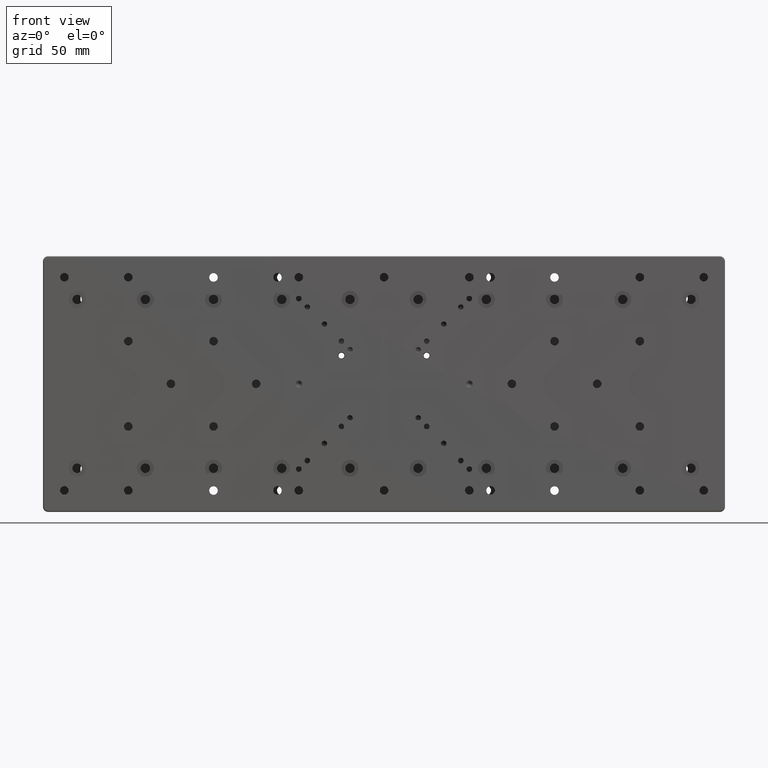
[diagram: clean part render]
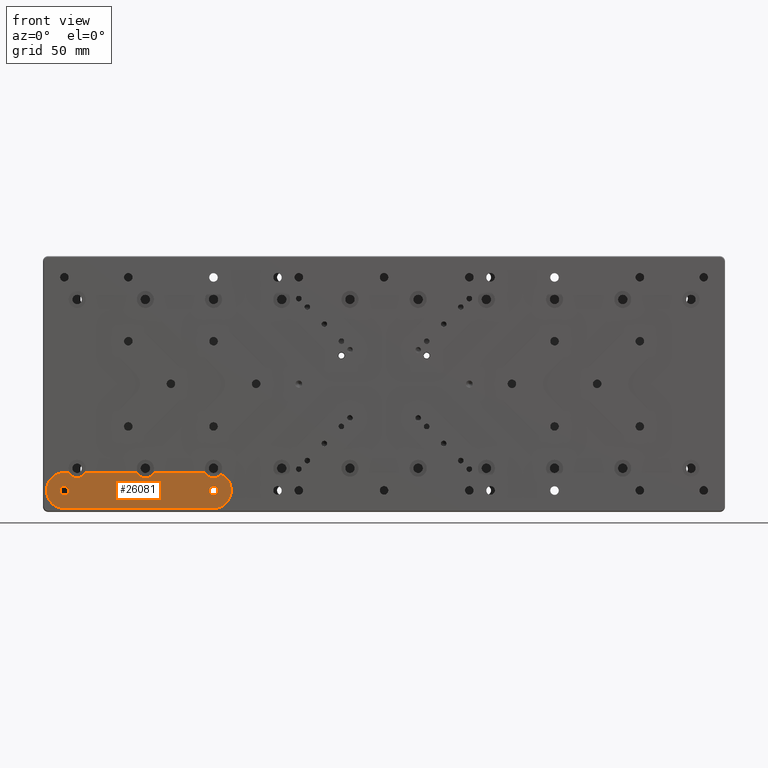
[diagram: same view with one face highlighted and labeled with its STEP entity id]
A machine part, front view. The second image highlights one B-rep face of the part: STEP entity #26081.
In plain terms, the highlighted planar face has unit normal (0, -1, 0).
Its self-contained STEP definition (entity closure, byte-faithful):
#236 = FACE_BOUND ( 'NONE', #25785, .T. ) ;
#312 = CARTESIAN_POINT ( 'NONE',  ( -187.5000000000000000, -24.00000000000000000, -52.00000000000000711 ) ) ;
#535 = EDGE_LOOP ( 'NONE', ( #8574 ) ) ;
#555 = CARTESIAN_POINT ( 'NONE',  ( -185.4772255750999932, -24.00000000000000000, -53.00000000000000000 ) ) ;
#630 = DIRECTION ( 'NONE',  ( 0.000000000000000000, 1.000000000000000000, 0.000000000000000000 ) ) ;
#766 = DIRECTION ( 'NONE',  ( 0.000000000000000000, 0.000000000000000000, 1.000000000000000000 ) ) ;
#1139 = DIRECTION ( 'NONE',  ( 0.000000000000000000, 0.000000000000000000, 1.000000000000000000 ) ) ;
#1380 = DIRECTION ( 'NONE',  ( -0.000000000000000000, 1.000000000000000000, -0.000000000000000000 ) ) ;
#1472 = AXIS2_PLACEMENT_3D ( 'NONE', #10690, #1380, #1588 ) ;
#1588 = DIRECTION ( 'NONE',  ( 0.000000000000000000, 0.000000000000000000, -1.000000000000000000 ) ) ;
#1903 = CARTESIAN_POINT ( 'NONE',  ( -140.0000000000000000, -24.00000000000000000, -49.50000000000000000 ) ) ;
#2123 = CIRCLE ( 'NONE', #1472, 10.49999999999999467 ) ;
#2188 = DIRECTION ( 'NONE',  ( -0.000000000000000000, 1.000000000000000000, -0.000000000000000000 ) ) ;
#2305 = VERTEX_POINT ( 'NONE', #7729 ) ;
#2790 = CARTESIAN_POINT ( 'NONE',  ( -95.46219039884999802, -24.00000000000000355, -54.15384615384999734 ) ) ;
#3070 = EDGE_CURVE ( 'NONE', #39783, #29793, #16046, .T. ) ;
#3200 = DIRECTION ( 'NONE',  ( 0.000000000000000000, 1.000000000000000000, 0.000000000000000000 ) ) ;
#3202 = CIRCLE ( 'NONE', #9015, 1.000000000000000888 ) ;
#3675 = CARTESIAN_POINT ( 'NONE',  ( -144.6345754866048594, -24.00000000000000000, -52.46153846153496403 ) ) ;
#3904 = EDGE_CURVE ( 'NONE', #38924, #10368, #35996, .T. ) ;
#3928 = CIRCLE ( 'NONE', #28446, 1.000000000000000888 ) ;
#4079 = FACE_BOUND ( 'NONE', #39364, .T. ) ;
#4665 = ORIENTED_EDGE ( 'NONE', *, *, #15317, .T. ) ;
#5141 = DIRECTION ( 'NONE',  ( 0.000000000000000000, 1.000000000000000000, 0.000000000000000000 ) ) ;
#5342 = EDGE_CURVE ( 'NONE', #24767, #39783, #3202, .T. ) ;
#6306 = FACE_BOUND ( 'NONE', #535, .T. ) ;
#6507 = DIRECTION ( 'NONE',  ( 0.000000000000000000, -1.000000000000000000, 0.000000000000000000 ) ) ;
#6849 = CARTESIAN_POINT ( 'NONE',  ( -100.0000000000000000, -24.00000000000000000, -65.00000000000000000 ) ) ;
#6897 = EDGE_CURVE ( 'NONE', #22754, #36073, #26516, .T. ) ;
#6978 = DIRECTION ( 'NONE',  ( -1.000000000000000000, 0.000000000000000000, -0.000000000000000000 ) ) ;
#7049 = DIRECTION ( 'NONE',  ( -0.000000000000000000, 1.000000000000000000, -0.000000000000000000 ) ) ;
#7090 = CARTESIAN_POINT ( 'NONE',  ( -185.4772255750999932, -24.00000000000000000, -52.00000000000000711 ) ) ;
#7275 = CARTESIAN_POINT ( 'NONE',  ( -134.5227744249000068, -24.00000000000000000, -52.00000000000000711 ) ) ;
#7323 = ORIENTED_EDGE ( 'NONE', *, *, #25164, .F. ) ;
#7729 = CARTESIAN_POINT ( 'NONE',  ( -145.4772255750999932, -24.00000000000000000, -52.00000000000000711 ) ) ;
#7735 = VERTEX_POINT ( 'NONE', #29560 ) ;
#7847 = CIRCLE ( 'NONE', #27858, 1.000000000000000888 ) ;
#8036 = DIRECTION ( 'NONE',  ( 1.000000000000000000, 0.000000000000000000, -0.000000000000000000 ) ) ;
#8542 = CARTESIAN_POINT ( 'NONE',  ( -100.0000000000000000, -24.00000000000000000, -49.50000000000000000 ) ) ;
#8574 = ORIENTED_EDGE ( 'NONE', *, *, #20783, .T. ) ;
#9015 = AXIS2_PLACEMENT_3D ( 'NONE', #2790, #15125, #39732 ) ;
#9183 = VECTOR ( 'NONE', #16949, 1000.000000000000000 ) ;
#9239 = ORIENTED_EDGE ( 'NONE', *, *, #22980, .F. ) ;
#9280 = VECTOR ( 'NONE', #6978, 1000.000000000000000 ) ;
#9302 = VECTOR ( 'NONE', #8036, 1000.000000000000000 ) ;
#9485 = CARTESIAN_POINT ( 'NONE',  ( -187.5000000000000000, -24.00000000000000000, -52.00000000000000711 ) ) ;
#9633 = AXIS2_PLACEMENT_3D ( 'NONE', #20959, #2188, #35914 ) ;
#9662 = EDGE_CURVE ( 'NONE', #11790, #35545, #2123, .T. ) ;
#9675 = ORIENTED_EDGE ( 'NONE', *, *, #14891, .F. ) ;
#9893 = CARTESIAN_POINT ( 'NONE',  ( -105.4772255750999932, -24.00000000000000000, -52.00000000000000711 ) ) ;
#10053 = EDGE_LOOP ( 'NONE', ( #39008, #9675, #10590, #14131, #31719, #37846, #31317, #30609, #9239, #13562, #21461, #27390, #17865, #27754, #7323 ) ) ;
#10368 = VERTEX_POINT ( 'NONE', #3675 ) ;
#10447 = CARTESIAN_POINT ( 'NONE',  ( -100.0000000000000000, -24.00000000000000000, -73.00000000000000000 ) ) ;
#10466 = EDGE_CURVE ( 'NONE', #2305, #24495, #37616, .T. ) ;
#10590 = ORIENTED_EDGE ( 'NONE', *, *, #26603, .T. ) ;
#10690 = CARTESIAN_POINT ( 'NONE',  ( -187.5000000000000000, -24.00000000000000000, -62.50000000000000000 ) ) ;
#10750 = CARTESIAN_POINT ( 'NONE',  ( -100.0000000000000000, -24.00000000000000000, -62.50000000000000000 ) ) ;
#11222 = VECTOR ( 'NONE', #31359, 1000.000000000000000 ) ;
#11790 = VERTEX_POINT ( 'NONE', #36516 ) ;
#11948 = CARTESIAN_POINT ( 'NONE',  ( -187.5000000000000000, -24.00000000000000000, -65.00000000000000000 ) ) ;
#12111 = AXIS2_PLACEMENT_3D ( 'NONE', #1903, #5141, #24321 ) ;
#12247 = DIRECTION ( 'NONE',  ( 0.000000000000000000, 1.000000000000000000, 0.000000000000000000 ) ) ;
#12339 = CIRCLE ( 'NONE', #36887, 1.000000000000000888 ) ;
#12819 = AXIS2_PLACEMENT_3D ( 'NONE', #555, #3200, #766 ) ;
#13375 = DIRECTION ( 'NONE',  ( 0.000000000000000000, 0.000000000000000000, -1.000000000000000000 ) ) ;
#13562 = ORIENTED_EDGE ( 'NONE', *, *, #13692, .T. ) ;
#13571 = DIRECTION ( 'NONE',  ( -0.000000000000000000, 1.000000000000000000, -0.000000000000000000 ) ) ;
#13692 = EDGE_CURVE ( 'NONE', #17823, #27721, #36882, .T. ) ;
#14131 = ORIENTED_EDGE ( 'NONE', *, *, #9662, .F. ) ;
#14792 = DIRECTION ( 'NONE',  ( 0.000000000000000000, 1.000000000000000000, 0.000000000000000000 ) ) ;
#14891 = EDGE_CURVE ( 'NONE', #30562, #36073, #30904, .T. ) ;
#14987 = VERTEX_POINT ( 'NONE', #11948 ) ;
#15125 = DIRECTION ( 'NONE',  ( -0.000000000000000000, 1.000000000000000000, -0.000000000000000000 ) ) ;
#15317 = EDGE_CURVE ( 'NONE', #14987, #14987, #21142, .T. ) ;
#15359 = AXIS2_PLACEMENT_3D ( 'NONE', #33875, #30832, #27811 ) ;
#15563 = DIRECTION ( 'NONE',  ( 0.000000000000000000, 0.000000000000000000, -1.000000000000000000 ) ) ;
#16046 = CIRCLE ( 'NONE', #18595, 10.49999999999999467 ) ;
#16566 = CIRCLE ( 'NONE', #36005, 5.499999999999998224 ) ;
#16949 = DIRECTION ( 'NONE',  ( -1.000000000000000000, 0.000000000000000000, -0.000000000000000000 ) ) ;
#17522 = CARTESIAN_POINT ( 'NONE',  ( -180.0000000000000000, -24.00000000000000000, -49.50000000000000000 ) ) ;
#17823 = VERTEX_POINT ( 'NONE', #9893 ) ;
#17865 = ORIENTED_EDGE ( 'NONE', *, *, #36363, .F. ) ;
#18255 = EDGE_CURVE ( 'NONE', #24767, #7735, #16566, .T. ) ;
#18595 = AXIS2_PLACEMENT_3D ( 'NONE', #10750, #13571, #13375 ) ;
#18797 = AXIS2_PLACEMENT_3D ( 'NONE', #34164, #6507, #29713 ) ;
#19210 = DIRECTION ( 'NONE',  ( 0.000000000000000000, 0.000000000000000000, 1.000000000000000000 ) ) ;
#19541 = CARTESIAN_POINT ( 'NONE',  ( -105.4772255750999932, -24.00000000000000000, -53.00000000000000000 ) ) ;
#19774 = VERTEX_POINT ( 'NONE', #28419 ) ;
#20248 = DIRECTION ( 'NONE',  ( -0.000000000000000000, 1.000000000000000000, -0.000000000000000000 ) ) ;
#20783 = EDGE_CURVE ( 'NONE', #19774, #19774, #32850, .T. ) ;
#20959 = CARTESIAN_POINT ( 'NONE',  ( -150.0000000000000000, -24.00000000000000000, -62.50000000000000000 ) ) ;
#21142 = CIRCLE ( 'NONE', #15359, 2.500000000000002220 ) ;
#21461 = ORIENTED_EDGE ( 'NONE', *, *, #36816, .F. ) ;
#21838 = PLANE ( 'NONE',  #18797 ) ;
#22082 = AXIS2_PLACEMENT_3D ( 'NONE', #31121, #25250, #15563 ) ;
#22754 = VERTEX_POINT ( 'NONE', #35934 ) ;
#22980 = EDGE_CURVE ( 'NONE', #17823, #7735, #12339, .T. ) ;
#22989 = CARTESIAN_POINT ( 'NONE',  ( -187.5000000000000000, -24.00000000000000000, -52.00000000000000711 ) ) ;
#23874 = DIRECTION ( 'NONE',  ( 0.000000000000000000, 0.000000000000000000, -1.000000000000000000 ) ) ;
#23984 = DIRECTION ( 'NONE',  ( 0.000000000000000000, 0.000000000000000000, 1.000000000000000000 ) ) ;
#24275 = DIRECTION ( 'NONE',  ( 0.000000000000000000, 0.000000000000000000, 1.000000000000000000 ) ) ;
#24321 = DIRECTION ( 'NONE',  ( 0.000000000000000000, 0.000000000000000000, 1.000000000000000000 ) ) ;
#24368 = CARTESIAN_POINT ( 'NONE',  ( -174.5227744249000352, -24.00000000000000000, -52.00000000000000711 ) ) ;
#24495 = VERTEX_POINT ( 'NONE', #24368 ) ;
#24767 = VERTEX_POINT ( 'NONE', #32626 ) ;
#25164 = EDGE_CURVE ( 'NONE', #22754, #24495, #3928, .T. ) ;
#25250 = DIRECTION ( 'NONE',  ( -0.000000000000000000, 1.000000000000000000, -0.000000000000000000 ) ) ;
#25785 = EDGE_LOOP ( 'NONE', ( #33685 ) ) ;
#26081 = ADVANCED_FACE ( 'NONE', ( #4079, #6306, #236, #37194 ), #21838, .T. ) ;
#26516 = CIRCLE ( 'NONE', #32975, 5.499999999999998224 ) ;
#26603 = EDGE_CURVE ( 'NONE', #30562, #35545, #38150, .T. ) ;
#27390 = ORIENTED_EDGE ( 'NONE', *, *, #3904, .T. ) ;
#27721 = VERTEX_POINT ( 'NONE', #7275 ) ;
#27754 = ORIENTED_EDGE ( 'NONE', *, *, #10466, .T. ) ;
#27811 = DIRECTION ( 'NONE',  ( 0.000000000000000000, 0.000000000000000000, -1.000000000000000000 ) ) ;
#27858 = AXIS2_PLACEMENT_3D ( 'NONE', #37400, #630, #19210 ) ;
#27939 = CARTESIAN_POINT ( 'NONE',  ( -187.5000000000000000, -24.00000000000000000, -52.00000000000000711 ) ) ;
#28024 = EDGE_CURVE ( 'NONE', #11790, #29793, #28642, .T. ) ;
#28419 = CARTESIAN_POINT ( 'NONE',  ( -150.0000000000000000, -24.00000000000000000, -65.00000000000000000 ) ) ;
#28446 = AXIS2_PLACEMENT_3D ( 'NONE', #32379, #20248, #23874 ) ;
#28642 = LINE ( 'NONE', #10447, #9302 ) ;
#28840 = DIRECTION ( 'NONE',  ( 0.000000000000000000, 1.000000000000000000, 0.000000000000000000 ) ) ;
#29382 = CARTESIAN_POINT ( 'NONE',  ( -184.6345754866048310, -24.00000000000000000, -52.46153846153496403 ) ) ;
#29460 = CARTESIAN_POINT ( 'NONE',  ( -100.0000000000000000, -24.00000000000000000, -62.50000000000000000 ) ) ;
#29560 = CARTESIAN_POINT ( 'NONE',  ( -104.6345754866048594, -24.00000000000000000, -52.46153846153496403 ) ) ;
#29713 = DIRECTION ( 'NONE',  ( 0.000000000000000000, -0.000000000000000000, -1.000000000000000000 ) ) ;
#29793 = VERTEX_POINT ( 'NONE', #33511 ) ;
#30562 = VERTEX_POINT ( 'NONE', #7090 ) ;
#30609 = ORIENTED_EDGE ( 'NONE', *, *, #18255, .T. ) ;
#30832 = DIRECTION ( 'NONE',  ( -0.000000000000000000, 1.000000000000000000, -0.000000000000000000 ) ) ;
#30904 = CIRCLE ( 'NONE', #12819, 1.000000000000000888 ) ;
#31090 = VERTEX_POINT ( 'NONE', #6849 ) ;
#31121 = CARTESIAN_POINT ( 'NONE',  ( -134.5227744249000068, -24.00000000000000355, -53.00000000000000000 ) ) ;
#31317 = ORIENTED_EDGE ( 'NONE', *, *, #5342, .F. ) ;
#31359 = DIRECTION ( 'NONE',  ( -1.000000000000000000, 0.000000000000000000, -0.000000000000000000 ) ) ;
#31719 = ORIENTED_EDGE ( 'NONE', *, *, #28024, .T. ) ;
#32285 = DIRECTION ( 'NONE',  ( 0.000000000000000000, 0.000000000000000000, -1.000000000000000000 ) ) ;
#32322 = EDGE_CURVE ( 'NONE', #31090, #31090, #37424, .T. ) ;
#32379 = CARTESIAN_POINT ( 'NONE',  ( -174.5227744249000352, -24.00000000000000355, -53.00000000000000000 ) ) ;
#32626 = CARTESIAN_POINT ( 'NONE',  ( -96.16031495287269593, -24.00000000000000000, -53.43786982248803241 ) ) ;
#32850 = CIRCLE ( 'NONE', #9633, 2.500000000000002220 ) ;
#32975 = AXIS2_PLACEMENT_3D ( 'NONE', #17522, #12247, #23984 ) ;
#33511 = CARTESIAN_POINT ( 'NONE',  ( -100.0000000000000000, -24.00000000000000000, -73.00000000000000000 ) ) ;
#33685 = ORIENTED_EDGE ( 'NONE', *, *, #32322, .T. ) ;
#33875 = CARTESIAN_POINT ( 'NONE',  ( -187.5000000000000000, -24.00000000000000000, -62.50000000000000000 ) ) ;
#34164 = CARTESIAN_POINT ( 'NONE',  ( -200.0000000000000000, -24.00000000000000000, 75.00000000000000000 ) ) ;
#35468 = CARTESIAN_POINT ( 'NONE',  ( -135.3654245133780023, -24.00000000000000000, -52.46153846154592770 ) ) ;
#35545 = VERTEX_POINT ( 'NONE', #9485 ) ;
#35914 = DIRECTION ( 'NONE',  ( 0.000000000000000000, 0.000000000000000000, -1.000000000000000000 ) ) ;
#35934 = CARTESIAN_POINT ( 'NONE',  ( -175.3654245133780023, -24.00000000000000000, -52.46153846154592770 ) ) ;
#35996 = CIRCLE ( 'NONE', #12111, 5.499999999999998224 ) ;
#36005 = AXIS2_PLACEMENT_3D ( 'NONE', #8542, #14792, #24275 ) ;
#36073 = VERTEX_POINT ( 'NONE', #29382 ) ;
#36363 = EDGE_CURVE ( 'NONE', #2305, #10368, #7847, .T. ) ;
#36516 = CARTESIAN_POINT ( 'NONE',  ( -187.5000000000000000, -24.00000000000000000, -73.00000000000000000 ) ) ;
#36816 = EDGE_CURVE ( 'NONE', #38924, #27721, #38196, .T. ) ;
#36882 = LINE ( 'NONE', #312, #9280 ) ;
#36887 = AXIS2_PLACEMENT_3D ( 'NONE', #19541, #28840, #1139 ) ;
#37194 = FACE_OUTER_BOUND ( 'NONE', #10053, .T. ) ;
#37400 = CARTESIAN_POINT ( 'NONE',  ( -145.4772255750999932, -24.00000000000000000, -53.00000000000000000 ) ) ;
#37424 = CIRCLE ( 'NONE', #38060, 2.500000000000002220 ) ;
#37616 = LINE ( 'NONE', #27939, #11222 ) ;
#37846 = ORIENTED_EDGE ( 'NONE', *, *, #3070, .F. ) ;
#38060 = AXIS2_PLACEMENT_3D ( 'NONE', #29460, #7049, #32285 ) ;
#38150 = LINE ( 'NONE', #22989, #9183 ) ;
#38196 = CIRCLE ( 'NONE', #22082, 1.000000000000000888 ) ;
#38924 = VERTEX_POINT ( 'NONE', #35468 ) ;
#39008 = ORIENTED_EDGE ( 'NONE', *, *, #6897, .T. ) ;
#39348 = CARTESIAN_POINT ( 'NONE',  ( -94.98452623030375719, -24.00000000000000000, -53.27530364372414340 ) ) ;
#39364 = EDGE_LOOP ( 'NONE', ( #4665 ) ) ;
#39732 = DIRECTION ( 'NONE',  ( 0.000000000000000000, 0.000000000000000000, -1.000000000000000000 ) ) ;
#39783 = VERTEX_POINT ( 'NONE', #39348 ) ;